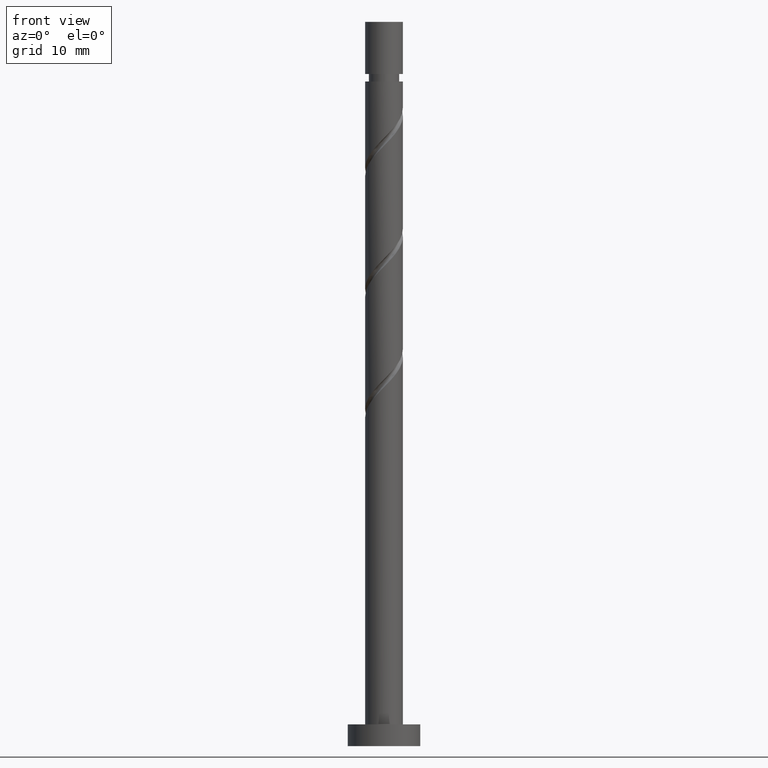
[diagram: clean part render]
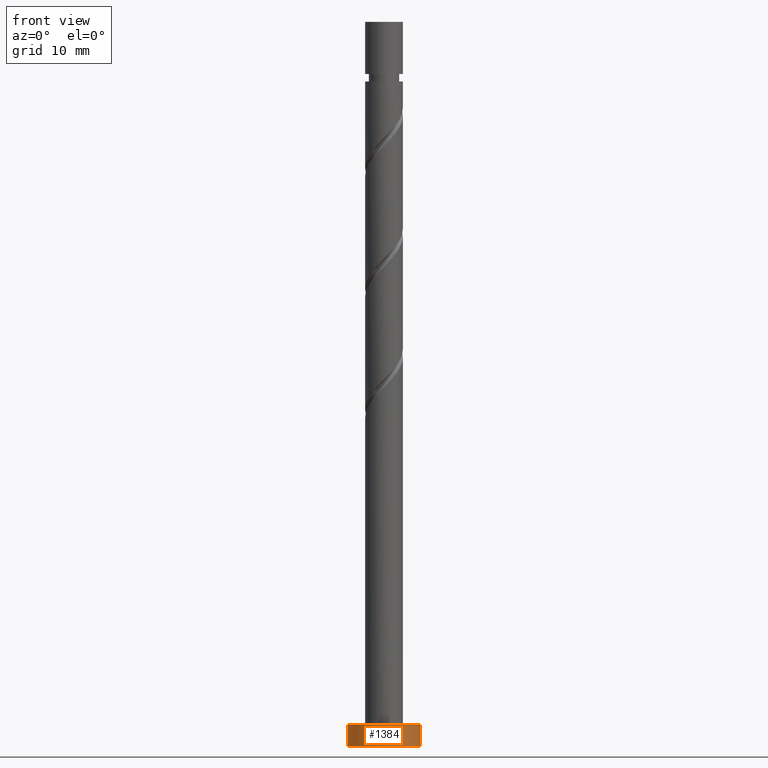
[diagram: same view with one face highlighted and labeled with its STEP entity id]
A machine part, front view. The second image highlights one B-rep face of the part: STEP entity #1384.
In plain terms, the highlighted cylindrical surface (edge-blend (fillet) strip) has radius 5 mm, axis along (-0, -0, -1).
Its self-contained STEP definition (entity closure, byte-faithful):
#54 = CARTESIAN_POINT ( 'NONE',  ( -5.000000000000000000, 0.000000000000000000, 0.000000000000000000 ) ) ;
#58 = VERTEX_POINT ( 'NONE', #183 ) ;
#88 = AXIS2_PLACEMENT_3D ( 'NONE', #387, #619, #1417 ) ;
#95 = EDGE_CURVE ( 'NONE', #689, #372, #369, .T. ) ;
#182 = CARTESIAN_POINT ( 'NONE',  ( 5.000000000000000000, 6.123233995736766282E-16, 3.000000000000000000 ) ) ;
#183 = CARTESIAN_POINT ( 'NONE',  ( 5.000000000000000000, 6.123233995736766282E-16, 0.000000000000000000 ) ) ;
#270 = AXIS2_PLACEMENT_3D ( 'NONE', #1346, #444, #1091 ) ;
#299 = CARTESIAN_POINT ( 'NONE',  ( -5.000000000000000000, 0.000000000000000000, 3.000000000000000000 ) ) ;
#322 = CYLINDRICAL_SURFACE ( 'NONE', #1445, 5.000000000000000000 ) ;
#369 = CIRCLE ( 'NONE', #270, 5.000000000000000000 ) ;
#372 = VERTEX_POINT ( 'NONE', #1334 ) ;
#387 = CARTESIAN_POINT ( 'NONE',  ( 0.000000000000000000, 0.000000000000000000, 0.000000000000000000 ) ) ;
#444 = DIRECTION ( 'NONE',  ( 0.000000000000000000, 0.000000000000000000, 1.000000000000000000 ) ) ;
#461 = EDGE_LOOP ( 'NONE', ( #913, #1045, #507, #881 ) ) ;
#507 = ORIENTED_EDGE ( 'NONE', *, *, #1321, .T. ) ;
#540 = DIRECTION ( 'NONE',  ( -0.000000000000000000, -0.000000000000000000, -1.000000000000000000 ) ) ;
#619 = DIRECTION ( 'NONE',  ( 0.000000000000000000, 0.000000000000000000, 1.000000000000000000 ) ) ;
#647 = CIRCLE ( 'NONE', #88, 5.000000000000000000 ) ;
#689 = VERTEX_POINT ( 'NONE', #1422 ) ;
#779 = DIRECTION ( 'NONE',  ( -0.000000000000000000, -0.000000000000000000, -1.000000000000000000 ) ) ;
#881 = ORIENTED_EDGE ( 'NONE', *, *, #922, .T. ) ;
#913 = ORIENTED_EDGE ( 'NONE', *, *, #1011, .F. ) ;
#922 = EDGE_CURVE ( 'NONE', #1147, #58, #647, .T. ) ;
#984 = LINE ( 'NONE', #182, #1273 ) ;
#1006 = CARTESIAN_POINT ( 'NONE',  ( 0.000000000000000000, 0.000000000000000000, 3.000000000000000000 ) ) ;
#1011 = EDGE_CURVE ( 'NONE', #372, #58, #984, .T. ) ;
#1045 = ORIENTED_EDGE ( 'NONE', *, *, #95, .F. ) ;
#1091 = DIRECTION ( 'NONE',  ( 1.000000000000000000, 0.000000000000000000, 0.000000000000000000 ) ) ;
#1147 = VERTEX_POINT ( 'NONE', #54 ) ;
#1273 = VECTOR ( 'NONE', #1433, 1000.000000000000000 ) ;
#1321 = EDGE_CURVE ( 'NONE', #689, #1147, #1449, .T. ) ;
#1323 = VECTOR ( 'NONE', #540, 1000.000000000000000 ) ;
#1334 = CARTESIAN_POINT ( 'NONE',  ( 5.000000000000000000, 6.123233995736766282E-16, 3.000000000000000000 ) ) ;
#1341 = FACE_OUTER_BOUND ( 'NONE', #461, .T. ) ;
#1346 = CARTESIAN_POINT ( 'NONE',  ( 0.000000000000000000, 0.000000000000000000, 3.000000000000000000 ) ) ;
#1384 = ADVANCED_FACE ( 'NONE', ( #1341 ), #322, .T. ) ;
#1417 = DIRECTION ( 'NONE',  ( 1.000000000000000000, 0.000000000000000000, 0.000000000000000000 ) ) ;
#1422 = CARTESIAN_POINT ( 'NONE',  ( -5.000000000000000000, 0.000000000000000000, 3.000000000000000000 ) ) ;
#1433 = DIRECTION ( 'NONE',  ( -0.000000000000000000, -0.000000000000000000, -1.000000000000000000 ) ) ;
#1445 = AXIS2_PLACEMENT_3D ( 'NONE', #1006, #779, #1465 ) ;
#1449 = LINE ( 'NONE', #299, #1323 ) ;
#1465 = DIRECTION ( 'NONE',  ( -1.000000000000000000, 0.000000000000000000, 0.000000000000000000 ) ) ;